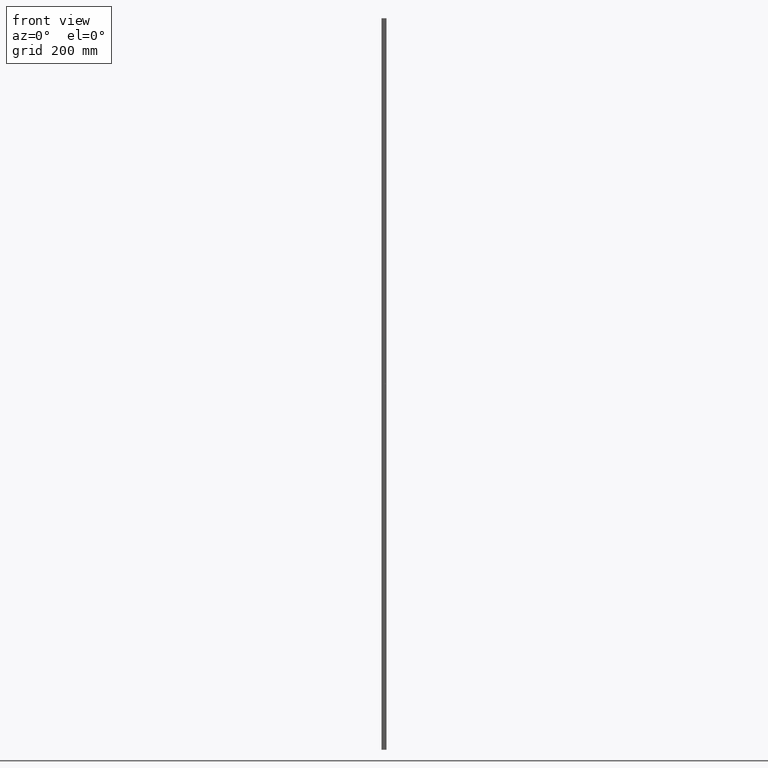
[diagram: clean part render]
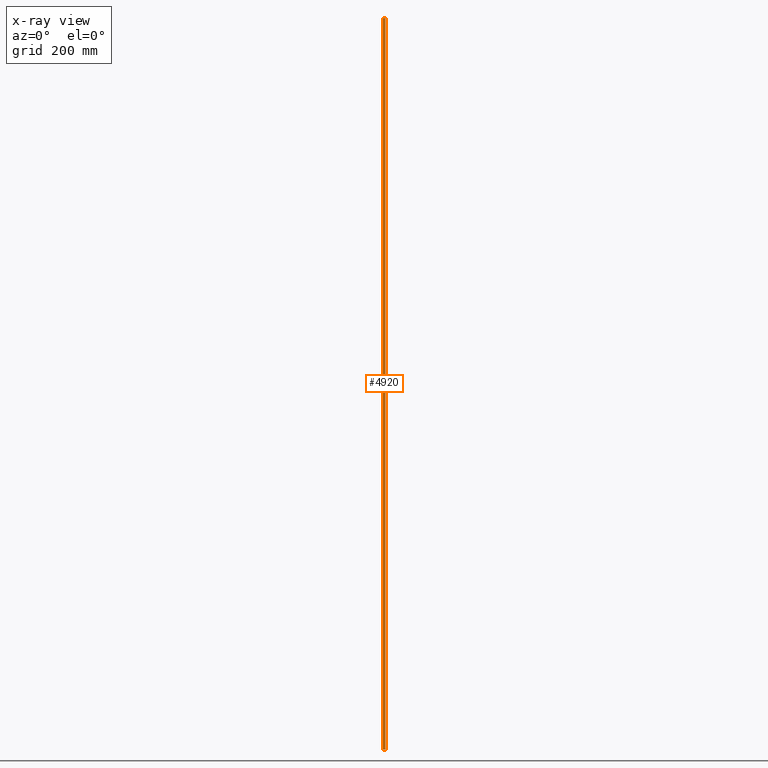
[diagram: x-ray — body ghosted, one internal face saturated and labeled with its STEP entity id]
A machine part, front view, then the same camera in x-ray: the body is ghosted and one INTERNAL B-rep face — a face not visible from any outside direction — is saturated and labeled: STEP entity #4920.
In plain terms, the highlighted planar face has unit normal (0, -1, 0).
Its self-contained STEP definition (entity closure, byte-faithful):
#62 = VERTEX_POINT ( 'NONE', #11201 ) ;
#81 = EDGE_LOOP ( 'NONE', ( #8417, #6353, #5981, #5731 ) ) ;
#167 = CARTESIAN_POINT ( 'NONE',  ( 3.267949192431120586, 2.999999999999997335, 1000.000000000000000 ) ) ;
#676 = DIRECTION ( 'NONE',  ( 0.000000000000000000, -0.000000000000000000, -1.000000000000000000 ) ) ;
#921 = DIRECTION ( 'NONE',  ( -1.000000000000000000, 0.000000000000000000, 0.000000000000000000 ) ) ;
#961 = CARTESIAN_POINT ( 'NONE',  ( 3.267949192431120586, 2.999999999999997780, -1000.000000000000000 ) ) ;
#1715 = LINE ( 'NONE', #7331, #3096 ) ;
#1757 = VERTEX_POINT ( 'NONE', #12120 ) ;
#2317 = LINE ( 'NONE', #167, #10206 ) ;
#2717 = LINE ( 'NONE', #11726, #3794 ) ;
#2818 = VERTEX_POINT ( 'NONE', #4553 ) ;
#3096 = VECTOR ( 'NONE', #6387, 1000.000000000000000 ) ;
#3223 = VECTOR ( 'NONE', #921, 1000.000000000000000 ) ;
#3304 = EDGE_CURVE ( 'NONE', #1757, #2818, #1715, .T. ) ;
#3668 = DIRECTION ( 'NONE',  ( 0.000000000000000000, -1.000000000000000000, 0.000000000000000000 ) ) ;
#3794 = VECTOR ( 'NONE', #5049, 1000.000000000000000 ) ;
#4553 = CARTESIAN_POINT ( 'NONE',  ( -3.267949192431120586, 2.999999999999997780, 1000.000000000000000 ) ) ;
#4920 = ADVANCED_FACE ( 'NONE', ( #10495 ), #11456, .F. ) ;
#5049 = DIRECTION ( 'NONE',  ( -0.000000000000000000, -0.000000000000000000, -1.000000000000000000 ) ) ;
#5731 = ORIENTED_EDGE ( 'NONE', *, *, #9277, .T. ) ;
#5797 = CARTESIAN_POINT ( 'NONE',  ( 3.267949192431120586, 2.999999999999997335, -1000.000000000000000 ) ) ;
#5981 = ORIENTED_EDGE ( 'NONE', *, *, #3304, .F. ) ;
#6353 = ORIENTED_EDGE ( 'NONE', *, *, #7984, .F. ) ;
#6387 = DIRECTION ( 'NONE',  ( -1.000000000000000000, 0.000000000000000000, 0.000000000000000000 ) ) ;
#6613 = CARTESIAN_POINT ( 'NONE',  ( 3.267949192431120586, 2.999999999999997780, 1000.000000000000000 ) ) ;
#6994 = DIRECTION ( 'NONE',  ( -0.000000000000000000, -0.000000000000000000, -1.000000000000000000 ) ) ;
#7331 = CARTESIAN_POINT ( 'NONE',  ( 3.267949192431120586, 2.999999999999997780, 1000.000000000000000 ) ) ;
#7834 = AXIS2_PLACEMENT_3D ( 'NONE', #6613, #3668, #676 ) ;
#7984 = EDGE_CURVE ( 'NONE', #2818, #62, #2717, .T. ) ;
#8417 = ORIENTED_EDGE ( 'NONE', *, *, #12414, .T. ) ;
#9277 = EDGE_CURVE ( 'NONE', #1757, #12031, #2317, .T. ) ;
#10206 = VECTOR ( 'NONE', #6994, 1000.000000000000000 ) ;
#10495 = FACE_OUTER_BOUND ( 'NONE', #81, .T. ) ;
#11201 = CARTESIAN_POINT ( 'NONE',  ( -3.267949192431120586, 2.999999999999997780, -1000.000000000000000 ) ) ;
#11257 = LINE ( 'NONE', #961, #3223 ) ;
#11456 = PLANE ( 'NONE',  #7834 ) ;
#11726 = CARTESIAN_POINT ( 'NONE',  ( -3.267949192431120586, 2.999999999999997780, 1000.000000000000000 ) ) ;
#12031 = VERTEX_POINT ( 'NONE', #5797 ) ;
#12120 = CARTESIAN_POINT ( 'NONE',  ( 3.267949192431120586, 2.999999999999997335, 1000.000000000000000 ) ) ;
#12414 = EDGE_CURVE ( 'NONE', #12031, #62, #11257, .T. ) ;